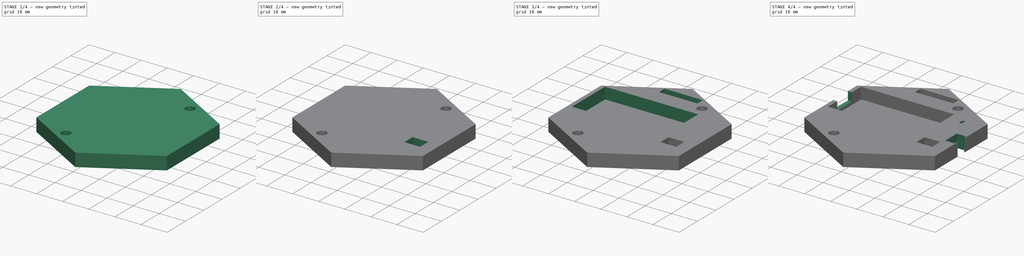
[diagram: build sequence overview — one tinted view per stage of 4, left to right]
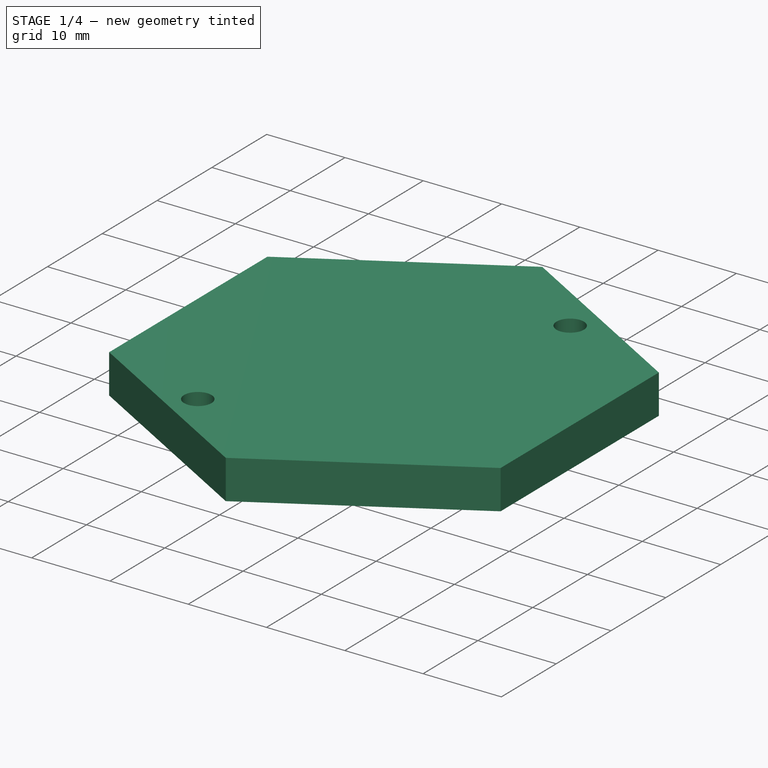
[diagram: stage 1 of 4 — iso view after this stage's code; geometry added in this stage tinted green]
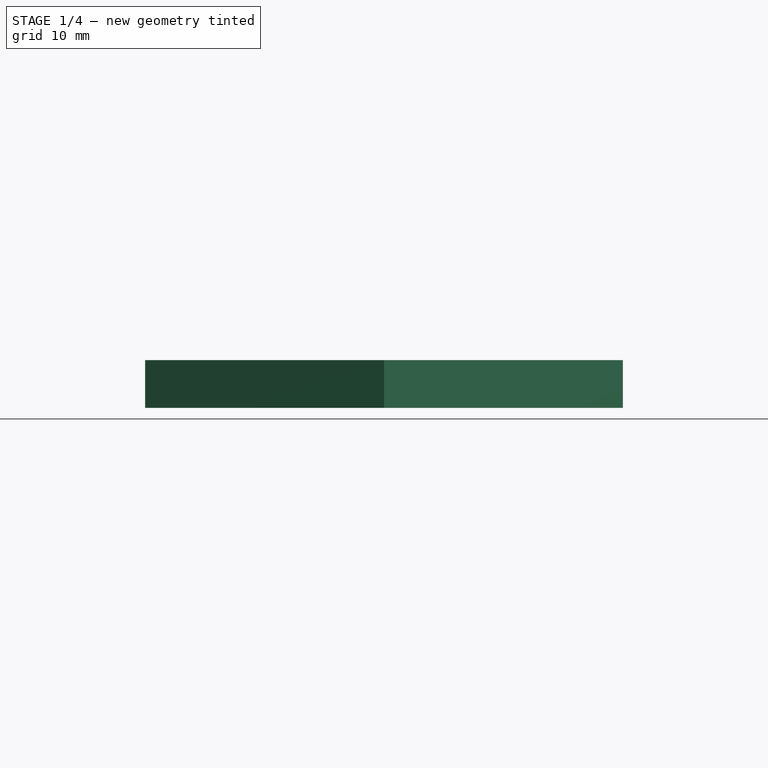
[diagram: stage 1 of 4 — front view after this stage's code; geometry added in this stage tinted green]
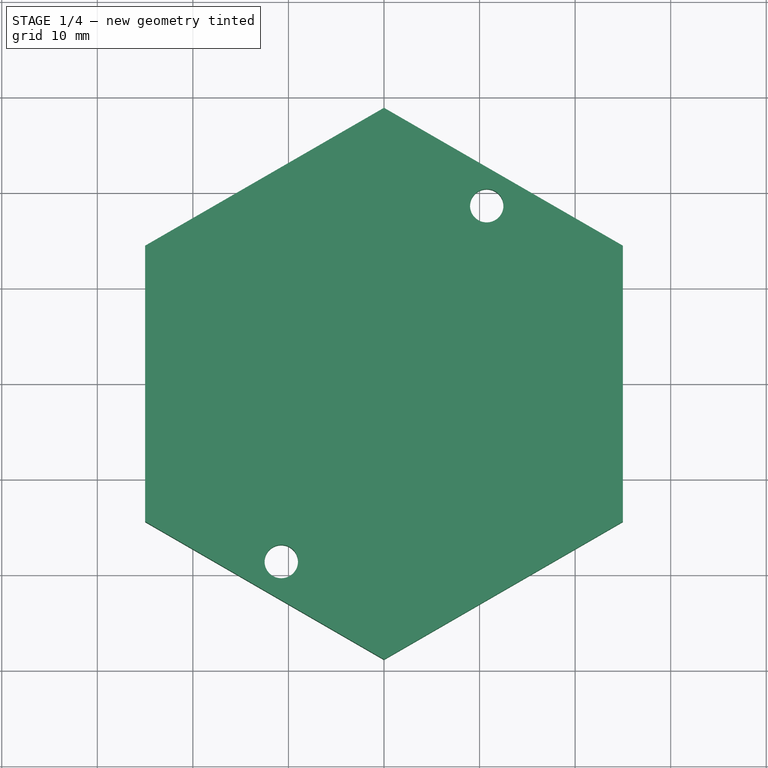
[diagram: stage 1 of 4 — top view after this stage's code; geometry added in this stage tinted green]
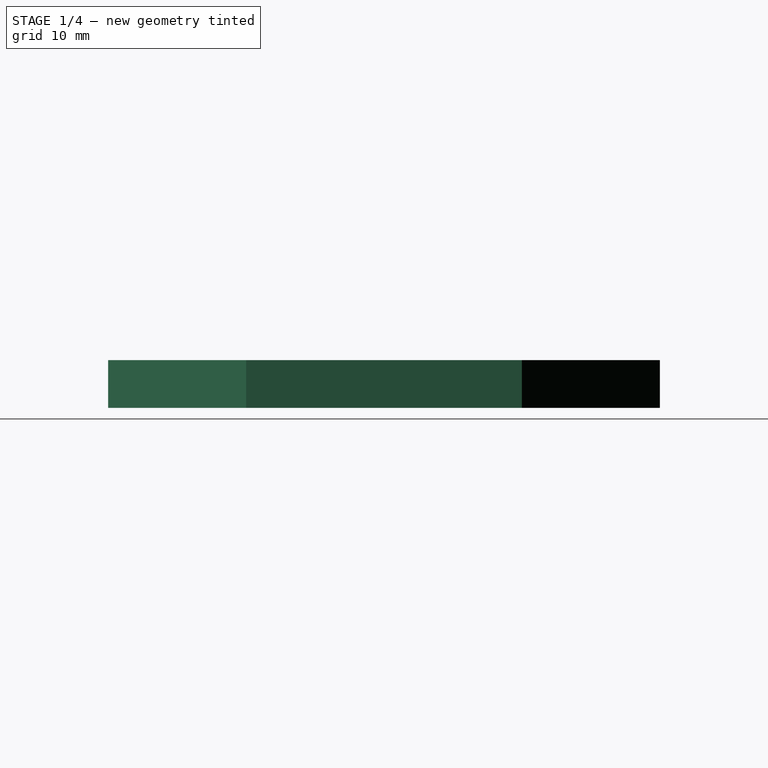
[diagram: stage 1 of 4 — right view after this stage's code; geometry added in this stage tinted green]
FCSTD DOCUMENT  (FreeCAD 0.16R6712 (Git))
Label: Vario2
License: All rights reserved
LicenseURL: http://en.wikipedia.org/wiki/All_rights_reserved
objects: Sketcher::SketchObject×11, PartDesign::Pocket×10, PartDesign::Pad×1
note: 33 computed .brp shape members not serialized (recipe doc carries the construction recipe); baked Part::Feature solids carry a one-line shape summary decoded from their .brp

FEATURE [Sketcher::SketchObject] Sketch  label="BaseS"
  sketch-geometry (7):
    g0: LineSegment StartX=-25 StartY=14.4338 StartZ=0 EndX=-25 EndY=-14.4338 EndZ=0
    g1: LineSegment StartX=-25 StartY=-14.4338 StartZ=0 EndX=0 EndY=-28.8675 EndZ=0
    g2: LineSegment StartX=0 StartY=-28.8675 StartZ=0 EndX=25 EndY=-14.4338 EndZ=0
    g3: LineSegment StartX=25 StartY=-14.4338 StartZ=0 EndX=25 EndY=14.4338 EndZ=0
    g4: LineSegment StartX=25 StartY=14.4338 StartZ=0 EndX=0 EndY=28.8675 EndZ=0
    g5: LineSegment StartX=0 StartY=28.8675 StartZ=0 EndX=-25 EndY=14.4338 EndZ=0
    g6: Circle [constr] CenterX=0 CenterY=0 CenterZ=0 NormalX=0 NormalY=0 NormalZ=1 Radius=28.8675
  constraints (16):
    c: Coincident(g0,g1)
    c: Coincident(g1,g2)
    c: Coincident(g2,g3)
    c: Coincident(g3,g4)
    c: Coincident(g4,g5)
    c: Coincident(g5,g0)
    c: Equal(g0, g1-g5) x5
    c: PointOnObject(g0,g6)
    c: PointOnObject(g1,g6)
    c: PointOnObject(g2,g6)
    c: PointOnObject(g3,g6)
    c: PointOnObject(g4,g6)
    c: PointOnObject(g5,g6)
    c: Coincident(g6,g-1)
    c: Perpendicular(g-1,g0)
    c: Distance(g-1,g0) = 25
FEATURE [PartDesign::Pad] Pad  label="Base"
  Length = 5
  Length2 = 100
  Sketch = -> Sketch
  Type = 0
FEATURE [Sketcher::SketchObject] Sketch001  label="VissesS"
  ExternalGeometry = -> [Pad]
  Placement = pos=(0,0,5) rot=(0,0,1;0rad)
  Support = -> Pad [Face8]
  sketch-geometry (4):
    g0: Circle CenterX=-10.75 CenterY=-18.6195 CenterZ=0 NormalX=0 NormalY=0 NormalZ=1 Radius=1.75
    g1: Circle CenterX=10.75 CenterY=18.6195 CenterZ=0 NormalX=0 NormalY=0 NormalZ=1 Radius=1.75
    g2: LineSegment [constr] StartX=-12.5 StartY=-21.6506 StartZ=0 EndX=0 EndY=0 EndZ=0
    g3: LineSegment [constr] StartX=0 StartY=0 StartZ=0 EndX=12.5 EndY=21.6506 EndZ=0
  constraints (12):
    c: PointOnObject(g2,g-4)
    c: Symmetric(g-4,g-4,g2)
    c: PointOnObject(g0,g2)
    c: Coincident(g2,g-1)
    c: Distance(g-1,g0) = 21.5
    c: Radius(g0) = 1.75
    c: PointOnObject(g3,g-3)
    c: Coincident(g3,g-1)
    c: Symmetric(g-3,g-3,g3)
    c: PointOnObject(g1,g3)
    c: Radius(g1) = 1.75
    c: Distance(g-1,g1) = 21.5
FEATURE [PartDesign::Pocket] Pocket  label="Visses"
  Length = 5
  Sketch = -> Sketch001
  Type = 1
FEATURE [Sketcher::SketchObject] Sketch002  label="BatterieS"
  ExternalGeometry = -> [Pocket]
  Placement = pos=(0,0,0) rot=(1,0,0;3.14159rad)
  Support = -> Pocket [Face4]
  sketch-geometry (4):
    g0: LineSegment StartX=-24 StartY=14 StartZ=0 EndX=12.2 EndY=14 EndZ=0
    g1: LineSegment StartX=12.2 StartY=14 StartZ=0 EndX=12.2 EndY=-12.2 EndZ=0
    g2: LineSegment StartX=12.2 StartY=-12.2 StartZ=0 EndX=-24 EndY=-12.2 EndZ=0
    g3: LineSegment StartX=-24 StartY=-12.2 StartZ=0 EndX=-24 EndY=14 EndZ=0
  constraints (12):
    c: Coincident(g0,g1)
    c: Coincident(g1,g2)
    c: Coincident(g2,g3)
    c: Coincident(g3,g0)
    c: Horizontal(g0)
    c: Horizontal(g2)
    c: Vertical(g1)
    c: Vertical(g3)
    c: DistanceY(g3,g3) = 26.2
    c: DistanceX(g0,g0) = 36.2
    c: Distance(g-1,g0) = 14
    c: DistanceX(g-3,g0) = 1
FEATURE [PartDesign::Pocket] Pocket001  label="Batterie"
  Length = 0.5
  Sketch = -> Sketch002
  Type = 0
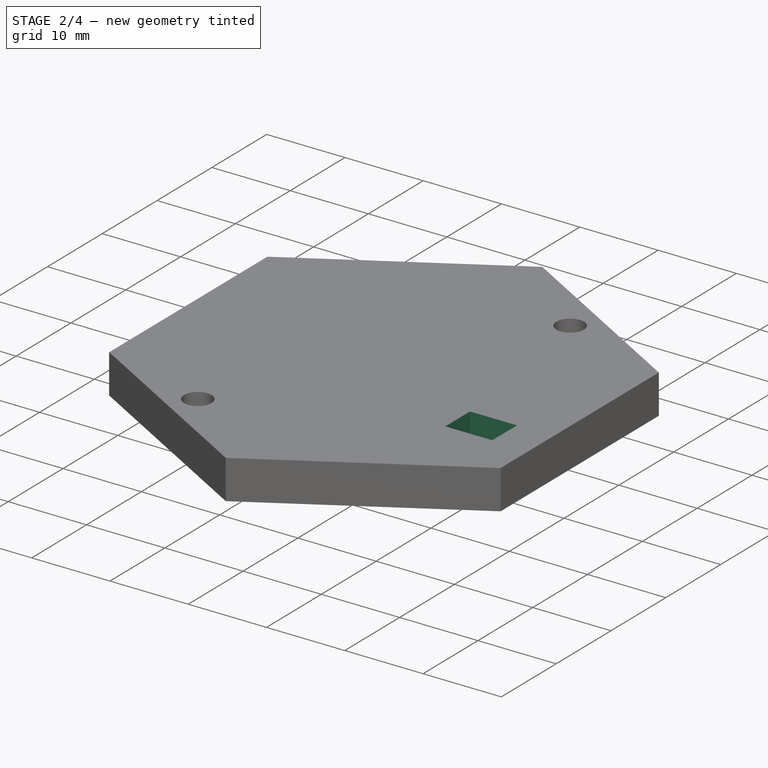
[diagram: stage 2 of 4 — iso view after this stage's code; geometry added in this stage tinted green]
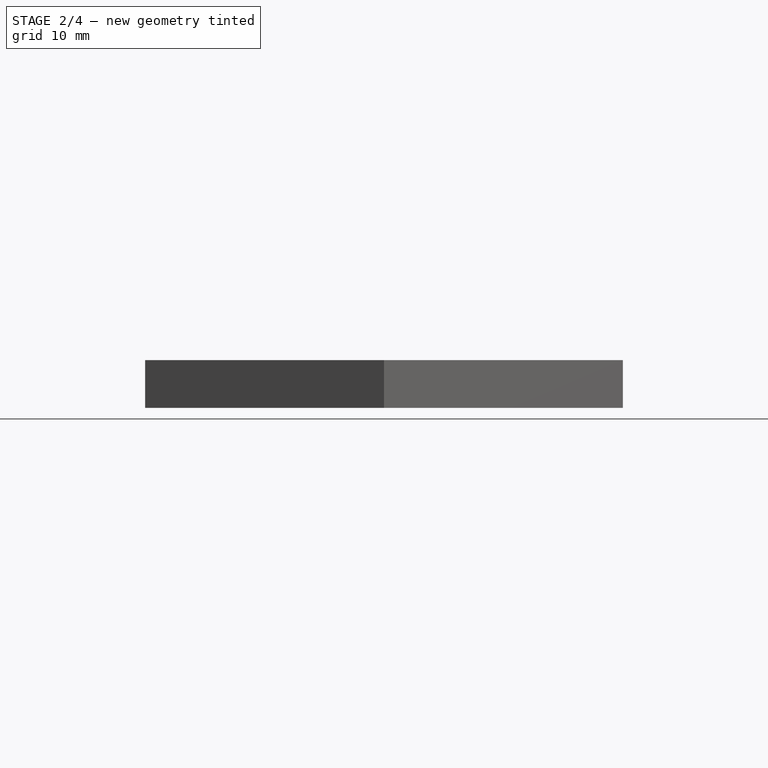
[diagram: stage 2 of 4 — front view after this stage's code; geometry added in this stage tinted green]
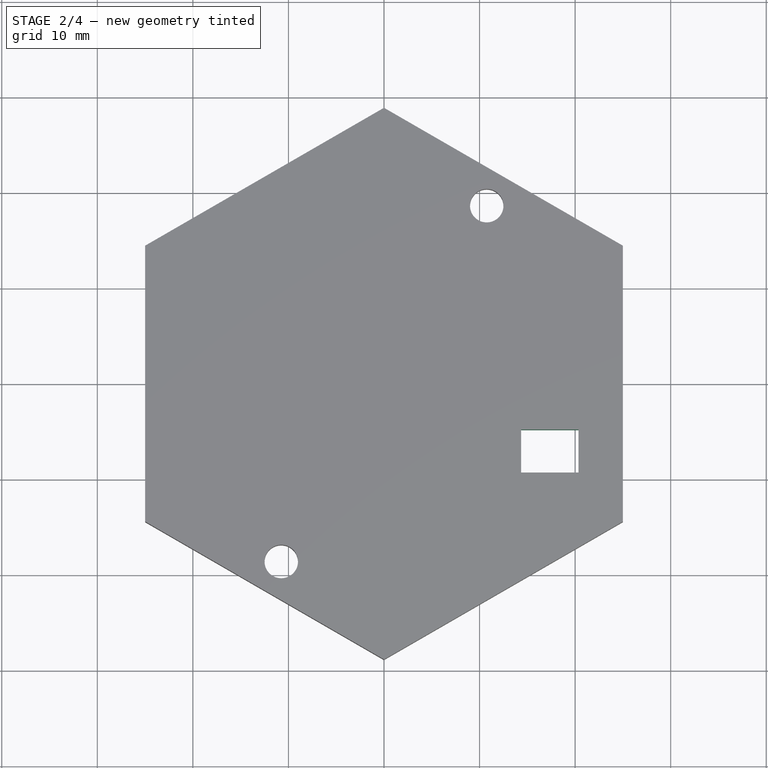
[diagram: stage 2 of 4 — top view after this stage's code; geometry added in this stage tinted green]
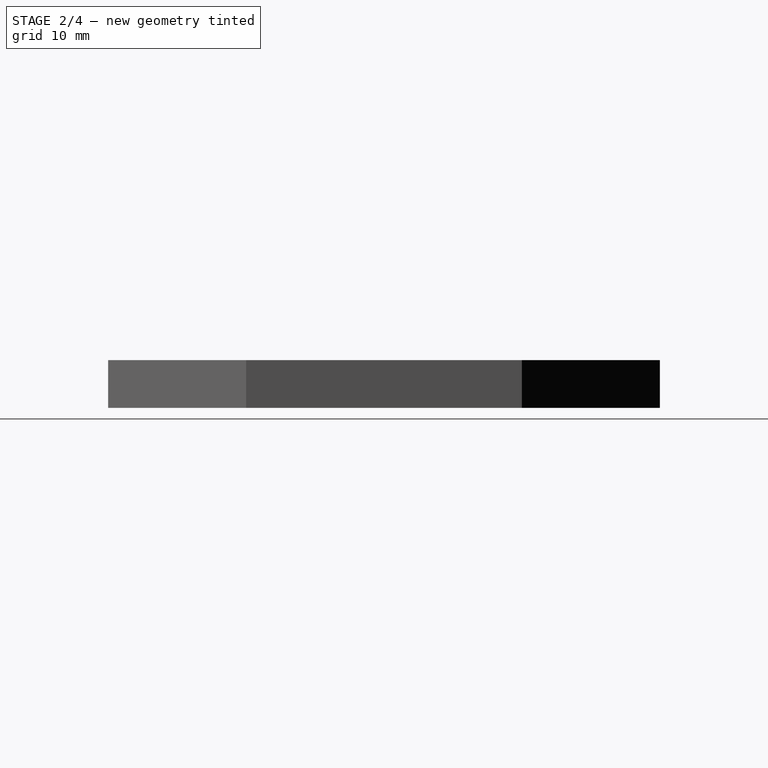
[diagram: stage 2 of 4 — right view after this stage's code; geometry added in this stage tinted green]
FEATURE [Sketcher::SketchObject] Sketch003  label="BibCercleS"
  Placement = pos=(0,0,0) rot=(1,0,0;3.14159rad)
  Support = -> Pocket001 [Face4]
  sketch-geometry (1):
    g0: Circle CenterX=0 CenterY=21 CenterZ=0 NormalX=0 NormalY=0 NormalZ=1 Radius=6
  constraints (3):
    c: PointOnObject(g0,g-2)
    c: Radius(g0) = 6
    c: DistanceY(g-1,g0) = 21
FEATURE [PartDesign::Pocket] Pocket002  label="BipCercle"
  Length = 2.8
  Sketch = -> Sketch003
  Type = 0
FEATURE [Sketcher::SketchObject] Sketch004  label="BipTigeS"
  ExternalGeometry = -> [Pocket002]
  Placement = pos=(0,0,0) rot=(1,0,0;3.14159rad)
  Support = -> Pocket002 [Face4]
  sketch-geometry (4):
    g0: LineSegment StartX=0.841162 StartY=24.1393 StartZ=0 EndX=8.08561 EndY=22.1981 EndZ=0
    g1: LineSegment StartX=8.08561 StartY=22.1981 StartZ=0 EndX=6.40328 EndY=15.9196 EndZ=0
    g2: LineSegment StartX=6.40328 StartY=15.9196 StartZ=0 EndX=-0.841162 EndY=17.8607 EndZ=0
    g3: LineSegment StartX=-0.841162 StartY=17.8607 StartZ=0 EndX=0.841162 EndY=24.1393 EndZ=0
  constraints (12):
    c: Coincident(g0,g1)
    c: Coincident(g1,g2)
    c: Coincident(g2,g3)
    c: Coincident(g3,g0)
    c: PointOnObject(g-3,g3)
    c: Angle(g-2,g3) = 2.87979
    c: Symmetric(g2,g0,g-3)
    c: Perpendicular(g3,g0)
    c: Perpendicular(g1,g0)
    c: Perpendicular(g2,g3)
    c: Distance(g1) = 6.5
    c: Distance(g2) = 7.5
FEATURE [PartDesign::Pocket] Pocket003  label="BipTige"
  Length = 2.8
  Sketch = -> Sketch004
  Type = 0
FEATURE [Sketcher::SketchObject] Sketch005  label="TrouTransistorS"
  Placement = pos=(0,0,0) rot=(1,0,0;3.14159rad)
  Support = -> Pocket003 [Face4]
  sketch-geometry (4):
    g0: LineSegment StartX=14.35 StartY=9.3 StartZ=0 EndX=20.35 EndY=9.3 EndZ=0
    g1: LineSegment StartX=20.35 StartY=9.3 StartZ=0 EndX=20.35 EndY=4.8 EndZ=0
    g2: LineSegment StartX=20.35 StartY=4.8 StartZ=0 EndX=14.35 EndY=4.8 EndZ=0
    g3: LineSegment StartX=14.35 StartY=4.8 StartZ=0 EndX=14.35 EndY=9.3 EndZ=0
  constraints (12):
    c: Coincident(g0,g1)
    c: Coincident(g1,g2)
    c: Coincident(g2,g3)
    c: Coincident(g3,g0)
    c: Horizontal(g0)
    c: Horizontal(g2)
    c: Vertical(g1)
    c: Vertical(g3)
    c: DistanceY(g3,g3) = 4.5
    c: DistanceX(g2,g2) = 6
    c: DistanceX(g-2,g2) = 14.35
    c: Distance(g-1,g2) = 4.8
FEATURE [PartDesign::Pocket] Pocket004  label="TrouTransistor"
  Length = 5
  Sketch = -> Sketch005
  Type = 1
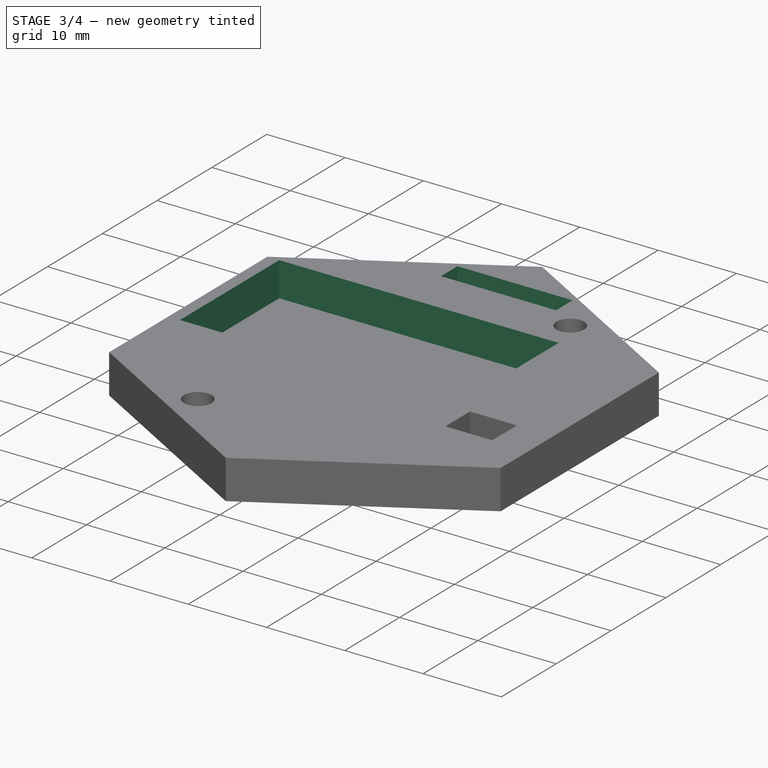
[diagram: stage 3 of 4 — iso view after this stage's code; geometry added in this stage tinted green]
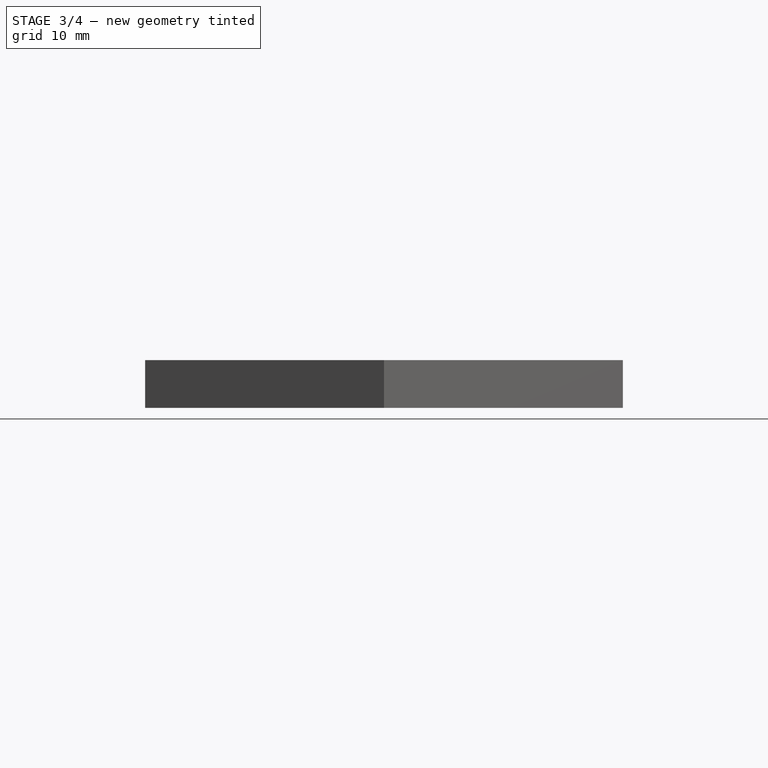
[diagram: stage 3 of 4 — front view after this stage's code; geometry added in this stage tinted green]
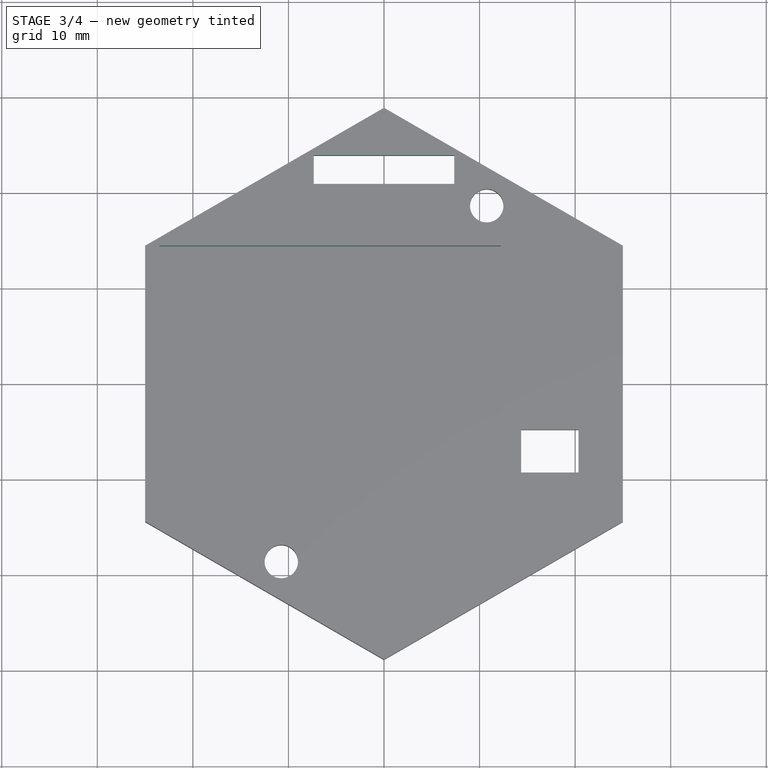
[diagram: stage 3 of 4 — top view after this stage's code; geometry added in this stage tinted green]
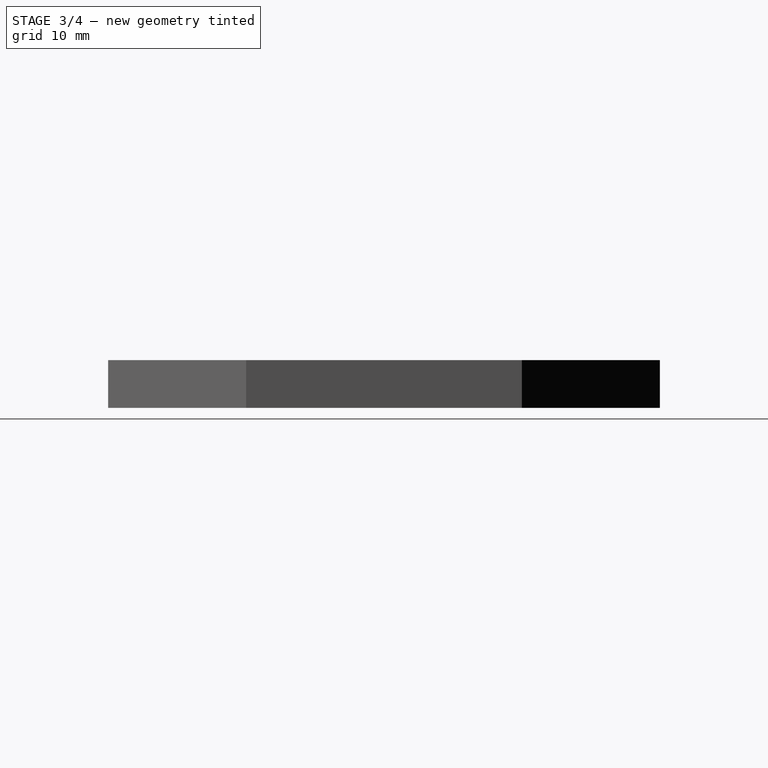
[diagram: stage 3 of 4 — right view after this stage's code; geometry added in this stage tinted green]
FEATURE [Sketcher::SketchObject] Sketch006  label="TrouBarroS"
  Placement = pos=(0,0,0) rot=(1,0,0;3.14159rad)
  Support = -> Pocket004 [Face4]
  sketch-geometry (5):
    g0: LineSegment StartX=-7.35 StartY=-20.9 StartZ=0 EndX=7.35 EndY=-20.9 EndZ=0
    g1: LineSegment StartX=7.35 StartY=-20.9 StartZ=0 EndX=7.35 EndY=-23.9 EndZ=0
    g2: LineSegment StartX=7.35 StartY=-23.9 StartZ=0 EndX=-7.35 EndY=-23.9 EndZ=0
    g3: LineSegment StartX=-7.35 StartY=-23.9 StartZ=0 EndX=-7.35 EndY=-20.9 EndZ=0
    g4: GeomPoint [constr] X=0 Y=-23.9 Z=0
  constraints (14):
    c: Coincident(g0,g1)
    c: Coincident(g1,g2)
    c: Coincident(g2,g3)
    c: Coincident(g3,g0)
    c: Horizontal(g0)
    c: Horizontal(g2)
    c: Vertical(g1)
    c: Vertical(g3)
    c: DistanceX(g2,g2) = 14.7
    c: DistanceY(g3,g3) = 3
    c: DistanceY(g-1,g1) = -23.9
    c: PointOnObject(g4,g2)
    c: PointOnObject(g4,g-2)
    c: Symmetric(g2,g1,g4)
FEATURE [PartDesign::Pocket] Pocket005  label="TrouBarro"
  Length = 5
  Sketch = -> Sketch006
  Type = 1
FEATURE [Sketcher::SketchObject] Sketch007  label="TeensyS"
  ExternalGeometry = -> [Pocket005]
  Placement = pos=(0,0,5) rot=(0,0,1;0rad)
  Support = -> Pocket005 [Face5]
  sketch-geometry (5):
    g0: LineSegment StartX=-23.5 StartY=14.4338 StartZ=0 EndX=12.2 EndY=14.4338 EndZ=0
    g1: LineSegment StartX=12.2 StartY=14.4338 StartZ=0 EndX=12.2 EndY=-3.66624 EndZ=0
    g2: LineSegment StartX=12.2 StartY=-3.66624 StartZ=0 EndX=-23.5 EndY=-3.66624 EndZ=0
    g3: LineSegment StartX=-23.5 StartY=-3.66624 StartZ=0 EndX=-23.5 EndY=14.4338 EndZ=0
    g4: LineSegment [constr] StartX=-25 StartY=14.4338 StartZ=0 EndX=25 EndY=14.4338 EndZ=0
  constraints (14):
    c: Coincident(g0,g1)
    c: Coincident(g1,g2)
    c: Coincident(g2,g3)
    c: Coincident(g3,g0)
    c: Horizontal(g0)
    c: Horizontal(g2)
    c: Vertical(g1)
    c: Vertical(g3)
    c: DistanceY(g3,g3) = 18.1
    c: DistanceX(g0,g0) = 35.7
    c: Distance(g0,g-4) = 1.5
    c: Coincident(g4,g-4)
    c: Coincident(g4,g-3)
    c: PointOnObject(g0,g4)
FEATURE [PartDesign::Pocket] Pocket006  label="Teensy"
  Length = 4.4
  Sketch = -> Sketch007
  Type = 0
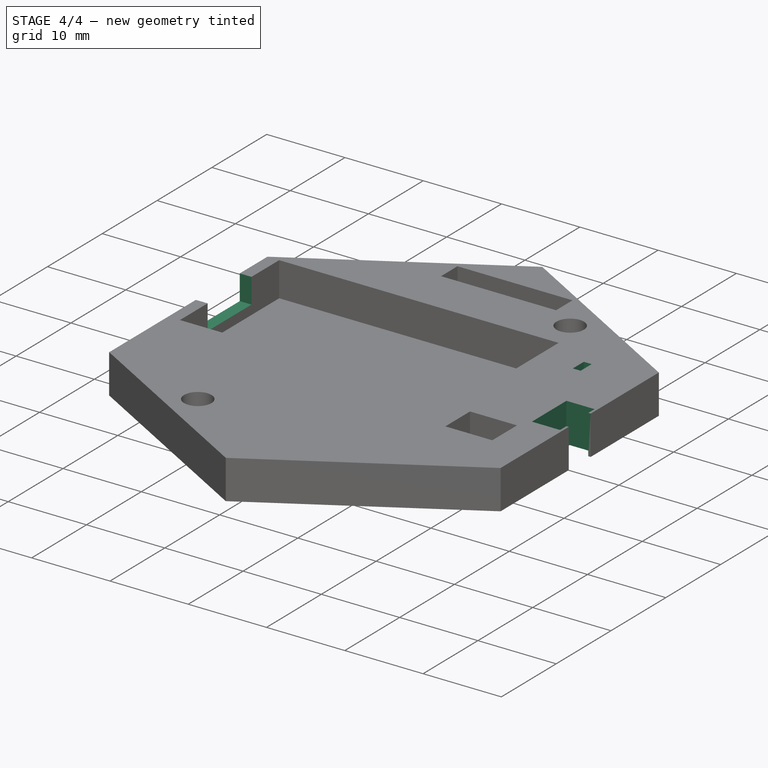
[diagram: stage 4 of 4 — iso view after this stage's code; geometry added in this stage tinted green]
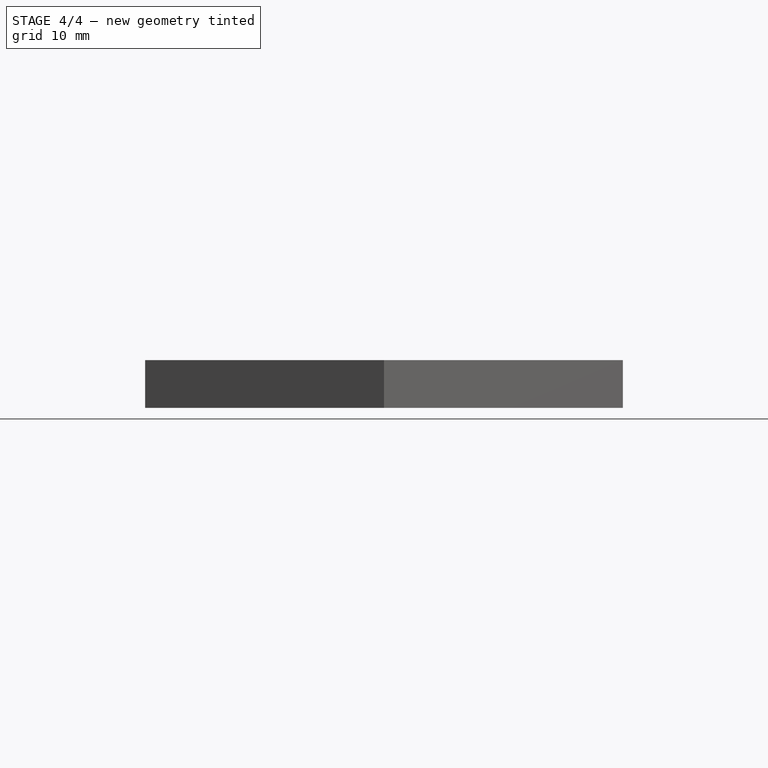
[diagram: stage 4 of 4 — front view after this stage's code; geometry added in this stage tinted green]
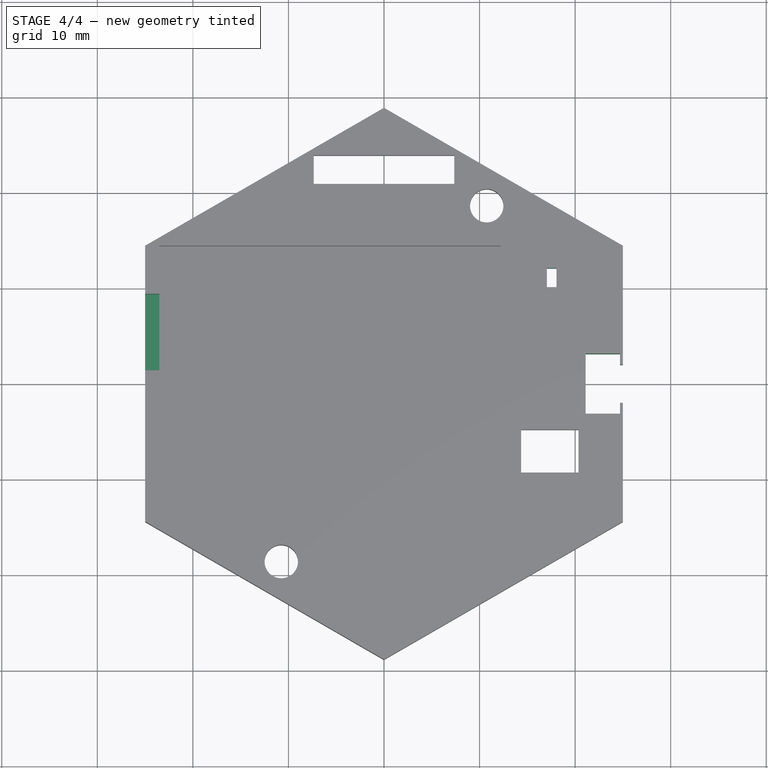
[diagram: stage 4 of 4 — top view after this stage's code; geometry added in this stage tinted green]
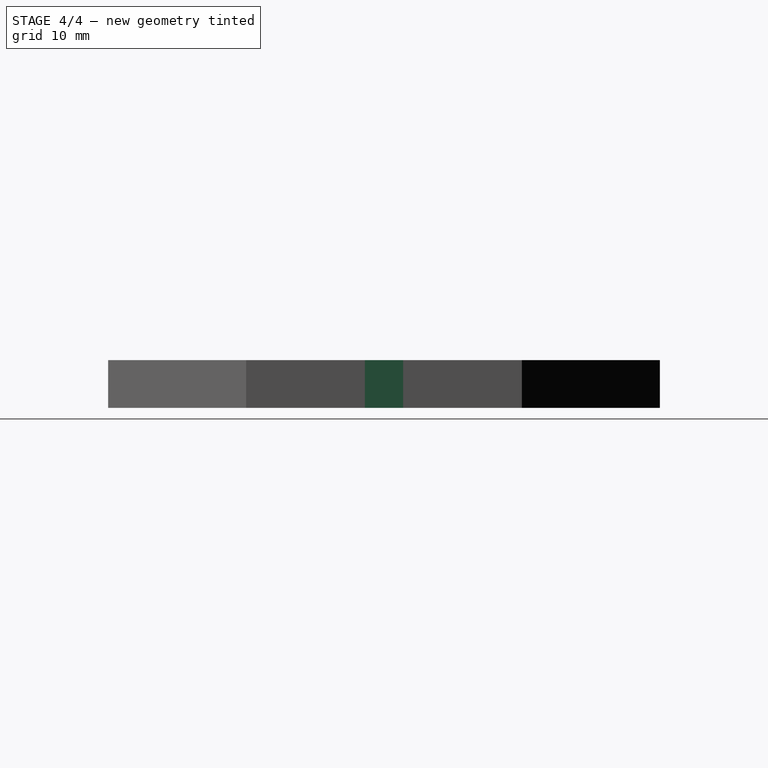
[diagram: stage 4 of 4 — right view after this stage's code; geometry added in this stage tinted green]
FEATURE [Sketcher::SketchObject] Sketch008  label="USB_S"
  ExternalGeometry = -> [Pocket006]
  Placement = pos=(0,0,5) rot=(0,0,1;0rad)
  Support = -> Pocket006 [Face5]
  sketch-geometry (5):
    g0: LineSegment StartX=-25 StartY=9.38376 StartZ=0 EndX=-23.5 EndY=9.38376 EndZ=0
    g1: LineSegment StartX=-23.5 StartY=9.38376 StartZ=0 EndX=-23.5 EndY=1.38376 EndZ=0
    g2: LineSegment StartX=-23.5 StartY=1.38376 StartZ=0 EndX=-25 EndY=1.38376 EndZ=0
    g3: LineSegment StartX=-25 StartY=1.38376 StartZ=0 EndX=-25 EndY=9.38376 EndZ=0
    g4: GeomPoint [constr] X=-23.5 Y=5.38376 Z=0
  constraints (13):
    c: Coincident(g0,g1)
    c: Coincident(g1,g2)
    c: Coincident(g2,g3)
    c: Coincident(g3,g0)
    c: Horizontal(g0)
    c: Horizontal(g2)
    c: Vertical(g1)
    c: Vertical(g3)
    c: PointOnObject(g0,g-3)
    c: PointOnObject(g1,g-4)
    c: Distance(g1,g0) = 8
    c: Symmetric(g-4,g-4,g4)
    c: Symmetric(g0,g1,g4)
FEATURE [PartDesign::Pocket] Pocket007  label="USB"
  Length = 3.2
  Sketch = -> Sketch008
  Type = 0
FEATURE [Sketcher::SketchObject] Sketch009  label="BoutonS"
  ExternalGeometry = -> [Pocket007]
  Placement = pos=(0,0,0) rot=(1,0,0;3.14159rad)
  Support = -> Pocket007 [Face2]
  sketch-geometry (10):
    g0: LineSegment StartX=21.1 StartY=3.15 StartZ=0 EndX=24.7 EndY=3.15 EndZ=0
    g1: LineSegment StartX=24.7 StartY=-3.15 StartZ=0 EndX=21.1 EndY=-3.15 EndZ=0
    g2: LineSegment StartX=21.1 StartY=-3.15 StartZ=0 EndX=21.1 EndY=3.15 EndZ=0
    g3: LineSegment StartX=24.7 StartY=3.15 StartZ=0 EndX=24.7 EndY=2 EndZ=0
    g4: LineSegment StartX=24.7 StartY=2 StartZ=0 EndX=25.4 EndY=2 EndZ=0
    g5: LineSegment StartX=25.4 StartY=2 StartZ=0 EndX=25.4 EndY=-2 EndZ=0
    g6: LineSegment StartX=25.4 StartY=-2 StartZ=0 EndX=24.7 EndY=-2 EndZ=0
    g7: LineSegment StartX=24.7 StartY=-2 StartZ=0 EndX=24.7 EndY=-3.15 EndZ=0
    g8: GeomPoint [constr] X=21.1 Y=0 Z=0
    g9: GeomPoint [constr] X=25.4 Y=0 Z=0
  constraints (26):
    c: Coincident(g1,g2)
    c: Coincident(g2,g0)
    c: Horizontal(g0)
    c: Horizontal(g1)
    c: Vertical(g2)
    c: DistanceY(g2,g2) = 6.3
    c: DistanceX(g1,g1) = 3.6
    c: Coincident(g4,g3)
    c: Horizontal(g4)
    c: Coincident(g5,g4)
    c: Vertical(g5)
    c: Horizontal(g6)
    c: Coincident(g7,g1)
    c: Vertical(g3)
    c: Vertical(g7)
    c: Coincident(g6,g7)
    c: Coincident(g0,g3)
    c: PointOnObject(g8,g-1)
    c: Symmetric(g1,g0,g8)
    c: PointOnObject(g9,g-1)
    c: Coincident(g5,g6)
    c: Symmetric(g5,g4,g9)
    c: Equal(g0,g1)
    c: DistanceY(g5,g5) = 4
    c: Distance(g4,g2) = 4.3
    c: Distance(g0,g-3) = 0.3
FEATURE [PartDesign::Pocket] Pocket008  label="Bouton"
  Length = 5
  Sketch = -> Sketch009
  Type = 1
FEATURE [Sketcher::SketchObject] Sketch010  label="TrouDiodeS"
  ExternalGeometry = -> [Pocket008]
  Placement = pos=(0,0,0) rot=(1,0,0;3.14159rad)
  Support = -> Pocket008 [Face2]
  sketch-geometry (4):
    g0: LineSegment StartX=17.05 StartY=-10.1 StartZ=0 EndX=18.05 EndY=-10.1 EndZ=0
    g1: LineSegment StartX=18.05 StartY=-10.1 StartZ=0 EndX=18.05 EndY=-12.1 EndZ=0
    g2: LineSegment StartX=18.05 StartY=-12.1 StartZ=0 EndX=17.05 EndY=-12.1 EndZ=0
    g3: LineSegment StartX=17.05 StartY=-12.1 StartZ=0 EndX=17.05 EndY=-10.1 EndZ=0
  constraints (12):
    c: Coincident(g0,g1)
    c: Coincident(g1,g2)
    c: Coincident(g2,g3)
    c: Coincident(g3,g0)
    c: Horizontal(g0)
    c: Horizontal(g2)
    c: Vertical(g1)
    c: Vertical(g3)
    c: DistanceY(g-1,g2) = -12.1
    c: DistanceY(g1,g1) = 2
    c: DistanceX(g0,g0) = 1
    c: DistanceX(g-2,g2) = 17.05
FEATURE [PartDesign::Pocket] Pocket009  label="TrouDiode"
  Length = 5
  Sketch = -> Sketch010
  Type = 1
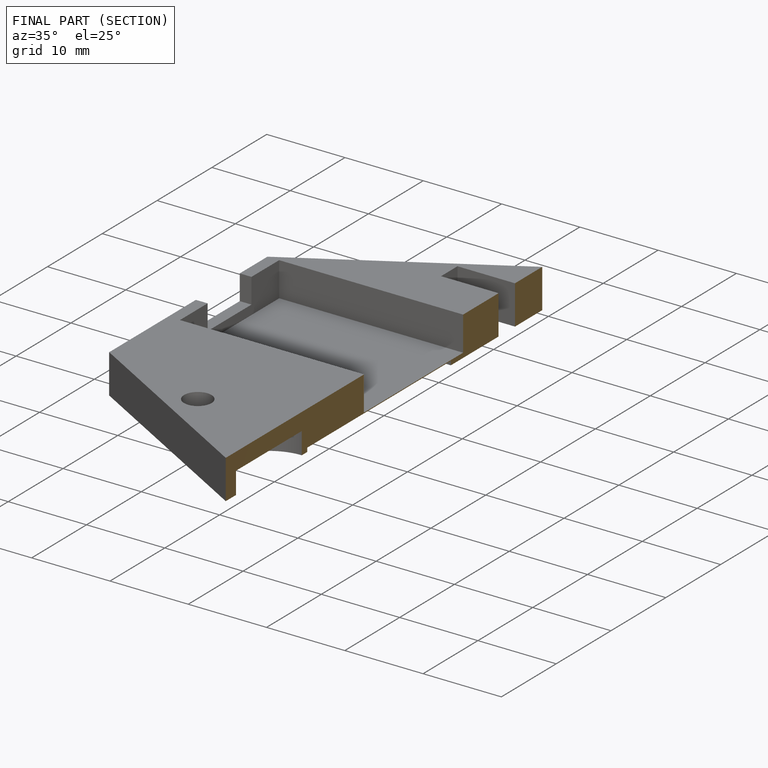
[diagram: finished part — half-section view (interior)]
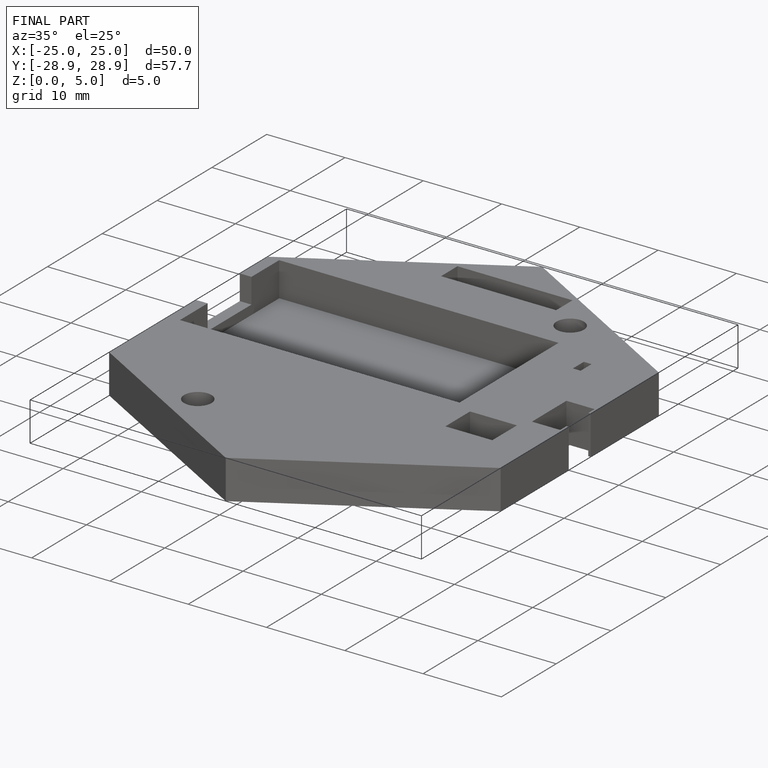
[diagram: finished part — iso view with bounding-box wireframe]
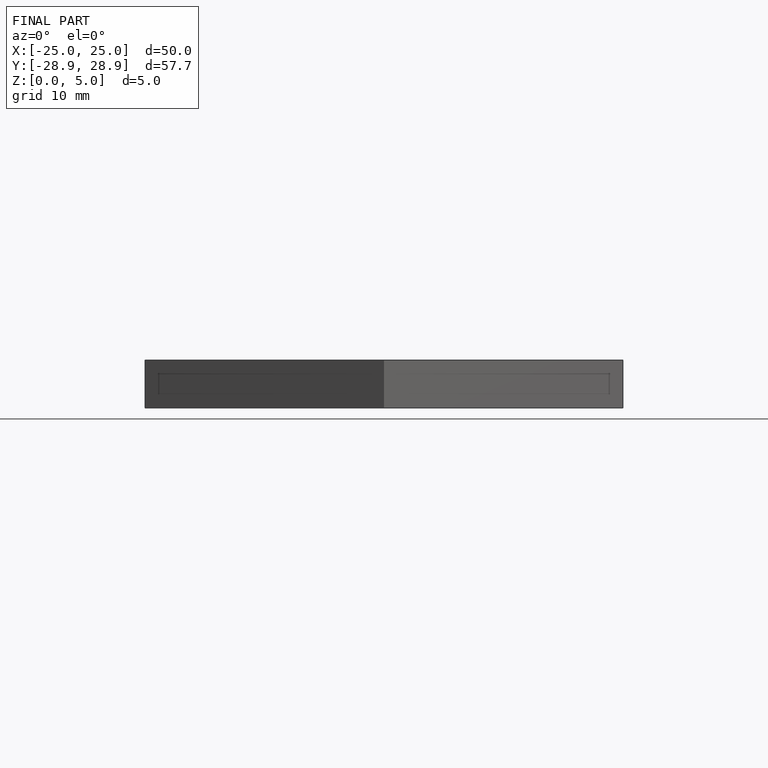
[diagram: finished part — front view with bounding-box wireframe]
